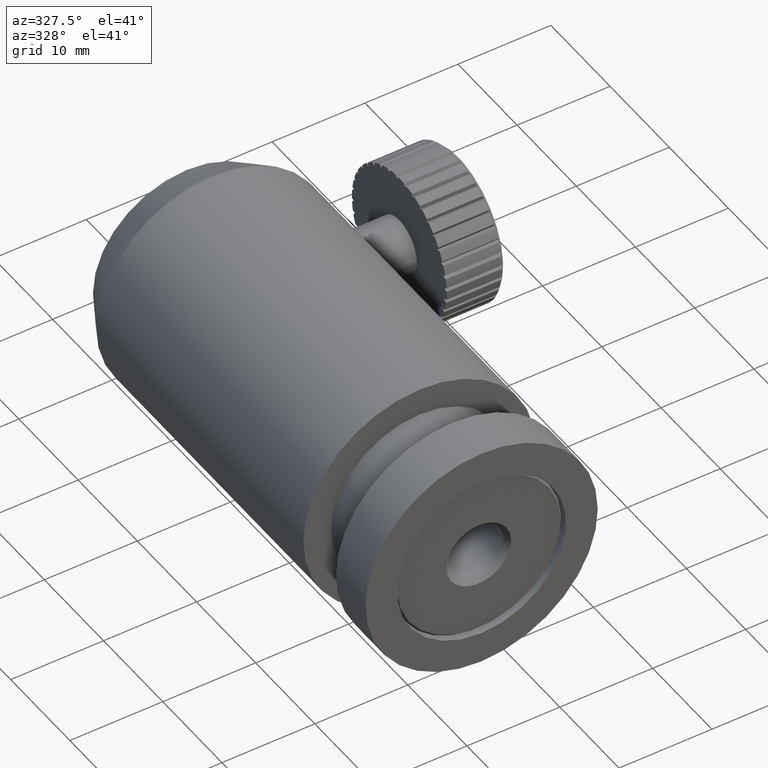
[diagram: clean part render]
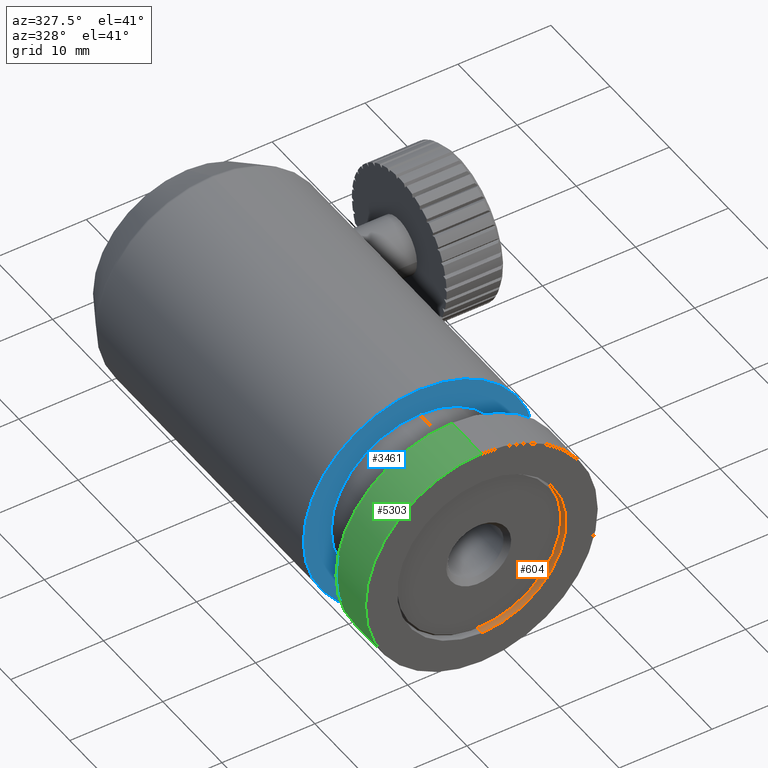
[diagram: same view with three faces highlighted in distinct colors, each labeled with its STEP entity id]
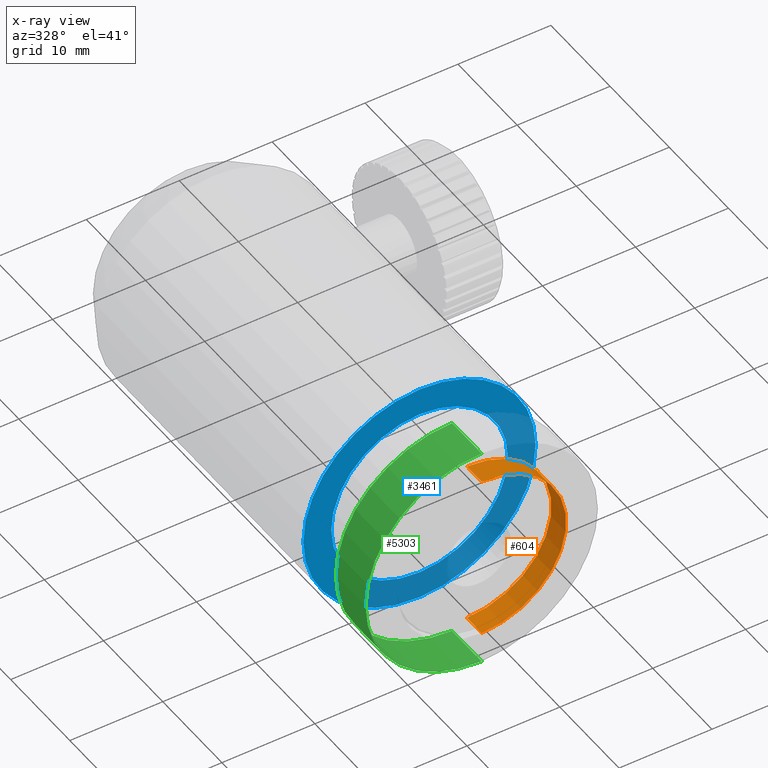
[diagram: x-ray of the same camera — body ghosted, the three highlighted faces saturated]
A machine part, auxiliary view with three faces highlighted in distinct colors.
The next image is the same camera in x-ray (body ghosted, the three faces saturated) — at least one of them is partly hidden behind the body in this view.
Their STEP definitions:

[orange] entity #604 — the highlighted cylindrical surface (partial cylindrical patch) has radius 9.1 mm, axis along (-0, -1, -0).
#60 = CARTESIAN_POINT ( 'NONE',  ( -3.204778668925409857, -11.81361205960983796, -7.703719777548943412E-31 ) ) ;
#75 = AXIS2_PLACEMENT_3D ( 'NONE', #60, #617, #2859 ) ;
#126 = CARTESIAN_POINT ( 'NONE',  ( -3.204778668925409857, -9.313612059609836180, -9.099999999999999645 ) ) ;
#138 = EDGE_CURVE ( 'NONE', #6850, #979, #4255, .T. ) ;
#537 = CARTESIAN_POINT ( 'NONE',  ( -3.204778668925408525, -11.81361205960983796, 9.099999999999999645 ) ) ;
#569 = DIRECTION ( 'NONE',  ( 0.0000000000000000000, -1.000000000000000000, 0.0000000000000000000 ) ) ;
#604 = ADVANCED_FACE ( 'NONE', ( #5463 ), #8918, .F. ) ;
#617 = DIRECTION ( 'NONE',  ( 0.0000000000000000000, -1.000000000000000000, 0.0000000000000000000 ) ) ;
#737 = CARTESIAN_POINT ( 'NONE',  ( -3.204778668925408525, -9.313612059609836180, 9.099999999999999645 ) ) ;
#816 = AXIS2_PLACEMENT_3D ( 'NONE', #6172, #6950, #9055 ) ;
#870 = DIRECTION ( 'NONE',  ( -0.0000000000000000000, -1.000000000000000000, -0.0000000000000000000 ) ) ;
#979 = VERTEX_POINT ( 'NONE', #537 ) ;
#1909 = CIRCLE ( 'NONE', #9103, 9.099999999999999645 ) ;
#2132 = VERTEX_POINT ( 'NONE', #126 ) ;
#2251 = LINE ( 'NONE', #3618, #8491 ) ;
#2355 = VERTEX_POINT ( 'NONE', #8779 ) ;
#2859 = DIRECTION ( 'NONE',  ( 0.0000000000000000000, 0.0000000000000000000, -1.000000000000000000 ) ) ;
#3322 = VECTOR ( 'NONE', #870, 1000.000000000000000 ) ;
#3510 = ORIENTED_EDGE ( 'NONE', *, *, #138, .F. ) ;
#3618 = CARTESIAN_POINT ( 'NONE',  ( -3.204778668925409857, -9.313612059609836180, -9.099999999999999645 ) ) ;
#3960 = ORIENTED_EDGE ( 'NONE', *, *, #5038, .T. ) ;
#4255 = LINE ( 'NONE', #737, #3322 ) ;
#4397 = ORIENTED_EDGE ( 'NONE', *, *, #9102, .T. ) ;
#4435 = EDGE_LOOP ( 'NONE', ( #3510, #8710, #3960, #4397 ) ) ;
#4947 = CARTESIAN_POINT ( 'NONE',  ( -3.204778668925408525, -9.313612059609836180, 9.099999999999999645 ) ) ;
#5038 = EDGE_CURVE ( 'NONE', #2132, #2355, #2251, .T. ) ;
#5463 = FACE_OUTER_BOUND ( 'NONE', #4435, .T. ) ;
#6172 = CARTESIAN_POINT ( 'NONE',  ( -3.204778668925409857, -9.313612059609836180, -7.703719777548943412E-31 ) ) ;
#6503 = DIRECTION ( 'NONE',  ( -0.0000000000000000000, -1.000000000000000000, -0.0000000000000000000 ) ) ;
#6850 = VERTEX_POINT ( 'NONE', #4947 ) ;
#6886 = DIRECTION ( 'NONE',  ( 0.0000000000000000000, 0.0000000000000000000, -1.000000000000000000 ) ) ;
#6950 = DIRECTION ( 'NONE',  ( -0.0000000000000000000, -1.000000000000000000, -0.0000000000000000000 ) ) ;
#7134 = CIRCLE ( 'NONE', #75, 9.099999999999999645 ) ;
#7465 = EDGE_CURVE ( 'NONE', #2132, #6850, #1909, .T. ) ;
#8491 = VECTOR ( 'NONE', #6503, 1000.000000000000000 ) ;
#8710 = ORIENTED_EDGE ( 'NONE', *, *, #7465, .F. ) ;
#8779 = CARTESIAN_POINT ( 'NONE',  ( -3.204778668925409857, -11.81361205960983796, -9.099999999999999645 ) ) ;
#8918 = CYLINDRICAL_SURFACE ( 'NONE', #816, 9.099999999999999645 ) ;
#8993 = CARTESIAN_POINT ( 'NONE',  ( -3.204778668925409857, -9.313612059609836180, -7.703719777548943412E-31 ) ) ;
#9055 = DIRECTION ( 'NONE',  ( 0.0000000000000000000, 0.0000000000000000000, -1.000000000000000000 ) ) ;
#9102 = EDGE_CURVE ( 'NONE', #2355, #979, #7134, .T. ) ;
#9103 = AXIS2_PLACEMENT_3D ( 'NONE', #8993, #569, #6886 ) ;

[blue] entity #3461 — the highlighted planar face has unit normal (0, 1, 0).
#25 = DIRECTION ( 'NONE',  ( 0.0000000000000000000, 0.0000000000000000000, -1.000000000000000000 ) ) ;
#140 = AXIS2_PLACEMENT_3D ( 'NONE', #6248, #6294, #25 ) ;
#295 = CARTESIAN_POINT ( 'NONE',  ( -3.204778668925408081, -1.313612059609841731, 12.50000000000000000 ) ) ;
#522 = DIRECTION ( 'NONE',  ( 0.0000000000000000000, 0.0000000000000000000, 1.000000000000000000 ) ) ;
#626 = ORIENTED_EDGE ( 'NONE', *, *, #6924, .F. ) ;
#712 = AXIS2_PLACEMENT_3D ( 'NONE', #6192, #4131, #522 ) ;
#725 = CIRCLE ( 'NONE', #140, 9.500000000000000000 ) ;
#1082 = FACE_BOUND ( 'NONE', #3149, .T. ) ;
#1262 = DIRECTION ( 'NONE',  ( 0.0000000000000000000, 1.000000000000000000, 0.0000000000000000000 ) ) ;
#1317 = ORIENTED_EDGE ( 'NONE', *, *, #1431, .F. ) ;
#1431 = EDGE_CURVE ( 'NONE', #5788, #6335, #9014, .T. ) ;
#1949 = CARTESIAN_POINT ( 'NONE',  ( -3.204778668925409857, -1.313612059609838401, -9.500000000000000000 ) ) ;
#2070 = ORIENTED_EDGE ( 'NONE', *, *, #8558, .F. ) ;
#2563 = CIRCLE ( 'NONE', #6842, 9.500000000000000000 ) ;
#3138 = VERTEX_POINT ( 'NONE', #8769 ) ;
#3149 = EDGE_LOOP ( 'NONE', ( #2070, #626 ) ) ;
#3461 = ADVANCED_FACE ( 'NONE', ( #1082, #6095 ), #5305, .F. ) ;
#3597 = ORIENTED_EDGE ( 'NONE', *, *, #4873, .F. ) ;
#4131 = DIRECTION ( 'NONE',  ( 0.0000000000000000000, 1.000000000000000000, 0.0000000000000000000 ) ) ;
#4153 = CARTESIAN_POINT ( 'NONE',  ( -3.204778668925409857, -1.313612059609838401, -7.703719777548943412E-31 ) ) ;
#4704 = DIRECTION ( 'NONE',  ( 0.0000000000000000000, -0.0000000000000000000, 1.000000000000000000 ) ) ;
#4873 = EDGE_CURVE ( 'NONE', #6335, #5788, #6305, .T. ) ;
#4965 = VERTEX_POINT ( 'NONE', #1949 ) ;
#5305 = PLANE ( 'NONE',  #6101 ) ;
#5339 = DIRECTION ( 'NONE',  ( 0.0000000000000000000, 1.000000000000000000, 0.0000000000000000000 ) ) ;
#5464 = DIRECTION ( 'NONE',  ( 0.0000000000000000000, 0.0000000000000000000, -1.000000000000000000 ) ) ;
#5788 = VERTEX_POINT ( 'NONE', #8317 ) ;
#6095 = FACE_OUTER_BOUND ( 'NONE', #7211, .T. ) ;
#6101 = AXIS2_PLACEMENT_3D ( 'NONE', #8895, #1262, #4704 ) ;
#6192 = CARTESIAN_POINT ( 'NONE',  ( -3.204778668925409857, -1.313612059609841731, -7.703719777548943412E-31 ) ) ;
#6248 = CARTESIAN_POINT ( 'NONE',  ( -3.204778668925409857, -1.313612059609838401, -7.703719777548943412E-31 ) ) ;
#6294 = DIRECTION ( 'NONE',  ( -0.0000000000000000000, -1.000000000000000000, -0.0000000000000000000 ) ) ;
#6305 = CIRCLE ( 'NONE', #712, 12.50000000000000000 ) ;
#6335 = VERTEX_POINT ( 'NONE', #295 ) ;
#6800 = AXIS2_PLACEMENT_3D ( 'NONE', #8844, #5339, #8146 ) ;
#6842 = AXIS2_PLACEMENT_3D ( 'NONE', #4153, #9056, #5464 ) ;
#6924 = EDGE_CURVE ( 'NONE', #3138, #4965, #725, .T. ) ;
#7211 = EDGE_LOOP ( 'NONE', ( #1317, #3597 ) ) ;
#8146 = DIRECTION ( 'NONE',  ( 0.0000000000000000000, 0.0000000000000000000, 1.000000000000000000 ) ) ;
#8317 = CARTESIAN_POINT ( 'NONE',  ( -3.204778668925409857, -1.313612059609841731, -12.50000000000000000 ) ) ;
#8558 = EDGE_CURVE ( 'NONE', #4965, #3138, #2563, .T. ) ;
#8769 = CARTESIAN_POINT ( 'NONE',  ( -3.204778668925408525, -1.313612059609838401, 9.500000000000000000 ) ) ;
#8844 = CARTESIAN_POINT ( 'NONE',  ( -3.204778668925409857, -1.313612059609841731, -7.703719777548943412E-31 ) ) ;
#8895 = CARTESIAN_POINT ( 'NONE',  ( 6.295221331074589699, -1.313612059609838401, -7.703719777548943412E-31 ) ) ;
#9014 = CIRCLE ( 'NONE', #6800, 12.50000000000000000 ) ;
#9056 = DIRECTION ( 'NONE',  ( -0.0000000000000000000, -1.000000000000000000, -0.0000000000000000000 ) ) ;

[green] entity #5303 — the highlighted cylindrical surface (partial cylindrical patch) has radius 12.5 mm, axis along (-0, -1, -0).
#112 = FACE_OUTER_BOUND ( 'NONE', #6583, .T. ) ;
#388 = DIRECTION ( 'NONE',  ( 0.0000000000000000000, 1.000000000000000000, 0.0000000000000000000 ) ) ;
#441 = LINE ( 'NONE', #5351, #4909 ) ;
#1003 = EDGE_CURVE ( 'NONE', #7074, #4848, #7141, .T. ) ;
#1087 = DIRECTION ( 'NONE',  ( -0.0000000000000000000, -1.000000000000000000, -0.0000000000000000000 ) ) ;
#1181 = DIRECTION ( 'NONE',  ( -0.0000000000000000000, -1.000000000000000000, -0.0000000000000000000 ) ) ;
#1449 = CARTESIAN_POINT ( 'NONE',  ( -3.204778668925409857, 38.18638794039016204, -7.703719777548943412E-31 ) ) ;
#1573 = VERTEX_POINT ( 'NONE', #6187 ) ;
#1580 = DIRECTION ( 'NONE',  ( -0.0000000000000000000, -1.000000000000000000, -0.0000000000000000000 ) ) ;
#1588 = AXIS2_PLACEMENT_3D ( 'NONE', #1449, #1580, #6514 ) ;
#1713 = VERTEX_POINT ( 'NONE', #8458 ) ;
#1770 = ORIENTED_EDGE ( 'NONE', *, *, #3160, .T. ) ;
#1874 = DIRECTION ( 'NONE',  ( 0.0000000000000000000, 0.0000000000000000000, -1.000000000000000000 ) ) ;
#2144 = VECTOR ( 'NONE', #1087, 1000.000000000000000 ) ;
#2406 = CARTESIAN_POINT ( 'NONE',  ( -3.204778668925409857, -6.813612059609839733, -12.50000000000000000 ) ) ;
#2643 = DIRECTION ( 'NONE',  ( -0.0000000000000000000, -1.000000000000000000, -0.0000000000000000000 ) ) ;
#3160 = EDGE_CURVE ( 'NONE', #4848, #1713, #441, .T. ) ;
#3286 = EDGE_CURVE ( 'NONE', #7074, #1573, #4568, .T. ) ;
#3491 = EDGE_CURVE ( 'NONE', #1713, #1573, #3734, .T. ) ;
#3734 = CIRCLE ( 'NONE', #6398, 12.50000000000000000 ) ;
#3993 = DIRECTION ( 'NONE',  ( 0.0000000000000000000, 0.0000000000000000000, 1.000000000000000000 ) ) ;
#4146 = CARTESIAN_POINT ( 'NONE',  ( -3.204778668925409857, -6.813612059609839733, -7.703719777548943412E-31 ) ) ;
#4568 = LINE ( 'NONE', #7398, #2144 ) ;
#4848 = VERTEX_POINT ( 'NONE', #2406 ) ;
#4909 = VECTOR ( 'NONE', #1181, 1000.000000000000000 ) ;
#5303 = ADVANCED_FACE ( 'NONE', ( #112 ), #7027, .T. ) ;
#5351 = CARTESIAN_POINT ( 'NONE',  ( -3.204778668925409857, 38.18638794039016204, -12.50000000000000000 ) ) ;
#5649 = AXIS2_PLACEMENT_3D ( 'NONE', #4146, #2643, #1874 ) ;
#5762 = ORIENTED_EDGE ( 'NONE', *, *, #1003, .T. ) ;
#6146 = CARTESIAN_POINT ( 'NONE',  ( -3.204778668925409857, -11.81361205960983796, -7.703719777548943412E-31 ) ) ;
#6187 = CARTESIAN_POINT ( 'NONE',  ( -3.204778668925408081, -11.81361205960983796, 12.50000000000000000 ) ) ;
#6398 = AXIS2_PLACEMENT_3D ( 'NONE', #6146, #388, #3993 ) ;
#6431 = ORIENTED_EDGE ( 'NONE', *, *, #3286, .F. ) ;
#6514 = DIRECTION ( 'NONE',  ( 0.0000000000000000000, 0.0000000000000000000, -1.000000000000000000 ) ) ;
#6583 = EDGE_LOOP ( 'NONE', ( #6431, #5762, #1770, #7451 ) ) ;
#7027 = CYLINDRICAL_SURFACE ( 'NONE', #1588, 12.50000000000000000 ) ;
#7074 = VERTEX_POINT ( 'NONE', #7894 ) ;
#7141 = CIRCLE ( 'NONE', #5649, 12.50000000000000000 ) ;
#7398 = CARTESIAN_POINT ( 'NONE',  ( -3.204778668925408081, 38.18638794039016204, 12.50000000000000000 ) ) ;
#7451 = ORIENTED_EDGE ( 'NONE', *, *, #3491, .T. ) ;
#7894 = CARTESIAN_POINT ( 'NONE',  ( -3.204778668925408081, -6.813612059609839733, 12.50000000000000000 ) ) ;
#8458 = CARTESIAN_POINT ( 'NONE',  ( -3.204778668925409857, -11.81361205960983796, -12.50000000000000000 ) ) ;